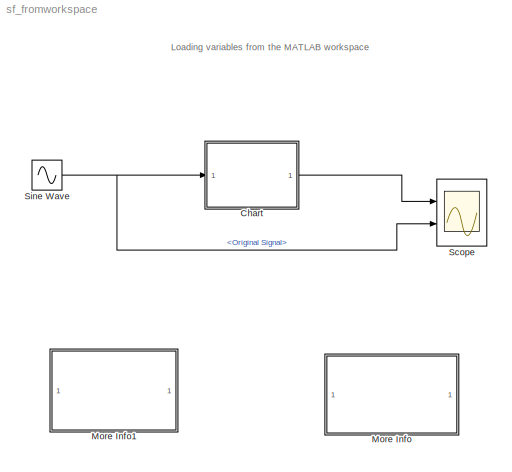
MODEL sf_fromworkspace
KIND model
CONFIG PreLoadFcn = eval('load r12mlworkspace')
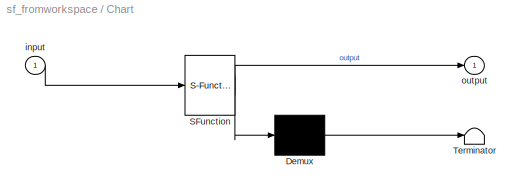
BLOCK [SubSystem] Chart
  MaskDescription = Stateflow diagram
  MaskDisplay = plot(sf('Private','sfblk','xIcon'),sf('Private','sfblk','yIcon'));text(0.5,0,sf('Private', 'sfblk', 'tIcon'),'HorizontalAl','Center','VerticalAl','Bottom');
  MaskIconFrame = off
  MaskIconOpaque = off
  MaskIconRotate = none
  MaskIconUnits = autoscale
  MaskSelfModifiable = on
  MaskType = Stateflow
  MinAlgLoopOccurrences = off
  Ports = [1, 1]
  PropExecContextAcrossSSBoundary = on
  RTWSystemCode = Auto
  TreatAsAtomicUnit = on
BLOCK [Demux] Chart/ Demux 
  Outputs = 1
  Ports = [1, 1]
BLOCK [S-Function] Chart/ SFunction 
  FunctionName = sf_sfun
  Parameters = delay,gain
  PortCounts = [1 2]
  Ports = [1, 2]
  Tag = Stateflow S-Function sf_fromworkspace 1
BLOCK [Terminator] Chart/ Terminator 
BLOCK [Inport] Chart/input
  IconDisplay = Port number
  LatchInput = off
  Port = 1
BLOCK [Outport] Chart/output
  IconDisplay = Port number
BLOCK [SubSystem] More Info
  MaskDisplay = disp('Double click\\nhere for\\ninformation on\\nthis demonstration')
  MaskIconFrame = on
  MaskIconOpaque = on
  MaskIconRotate = none
  MaskIconUnits = autoscale
  MinAlgLoopOccurrences = off
  Ports = []
  PropExecContextAcrossSSBoundary = on
  RTWSystemCode = Auto
  TreatAsAtomicUnit = off
BLOCK [SubSystem] More Info1
  MaskDisplay = disp('Double click\\nhere for<path> Help')
  MaskIconFrame = on
  MaskIconOpaque = on
  MaskIconRotate = none
  MaskIconUnits = autoscale
  MinAlgLoopOccurrences = off
  OpenFcn = simcad(bdroot);
  Ports = []
  PropExecContextAcrossSSBoundary = on
  RTWSystemCode = Auto
  TreatAsAtomicUnit = off
BLOCK [Scope] Scope
  DataFormat = StructureWithTime
  LimitDataPoints = off
  NumInputPorts = 2
  Ports = [2]
  TimeRange = 100
  YMax = 5~1
  YMin = -5~-1
  ZoomMode = yonly
BLOCK [Sin] Sine Wave
  Ports = [0, 1]
  SampleTime = 0
  SineType = Time based
ANNOTATION (root): Loading variables from the MATLAB workspace
ANNOTATION More Info: Loading MATLAB variables
ANNOTATION More Info: The purpose of this demonstration is to illustrate how variables in your Stateflow chart can be \ndefined and initialized from the MATLAB workspace. You are also able to select\nthe 'Initialize From Workspace' property of the local variable. \n\nIn this particular example, we initialize two variables from the MATLAB workspace: 'gain' and 'delay'. \nThe variables are initialized from the workspace ...<+644ch>
LINE Chart/ Demux :1 -> Chart/ Terminator :1
LINE Chart/ SFunction :1 -> Chart/ Demux :1
LINE Chart/ SFunction :2 -> Chart/output:1
LINE Chart/input:1 -> Chart/ SFunction :1
LINE Chart:1 -> Scope:1
NET Sine Wave:1 -> Chart:1, Scope:2
note: NET lines group one-source signal fan-out (src -> all destinations, sorted); 1:1 wires keep LINE
CHART Chart states=3 transitions=2
  STATE_LABEL 'A\\noutput=0;'
  STATE_LABEL 'B\\ndu: output=gain*input;'
  STATE_LABEL 'The following variables are initialized\\nfrom the MATLAB workspace:\\n\\ngain    =  5\\ndelay   =  20 (in seconds)'
note: 1 file-system path scrubbed to <path> (not preserved elsewhere — flat text is the only slx artifact)
